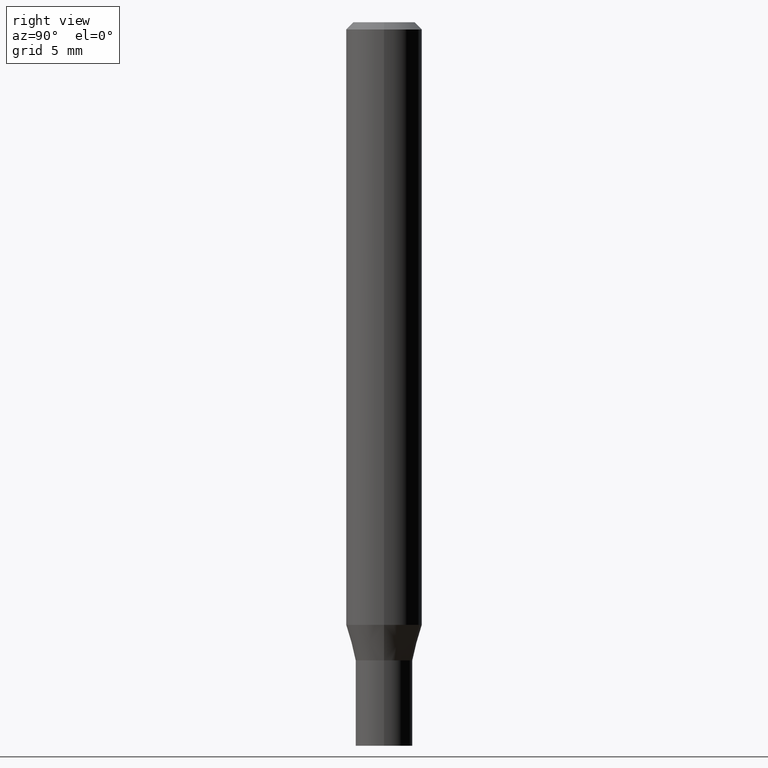
[diagram: clean part render]
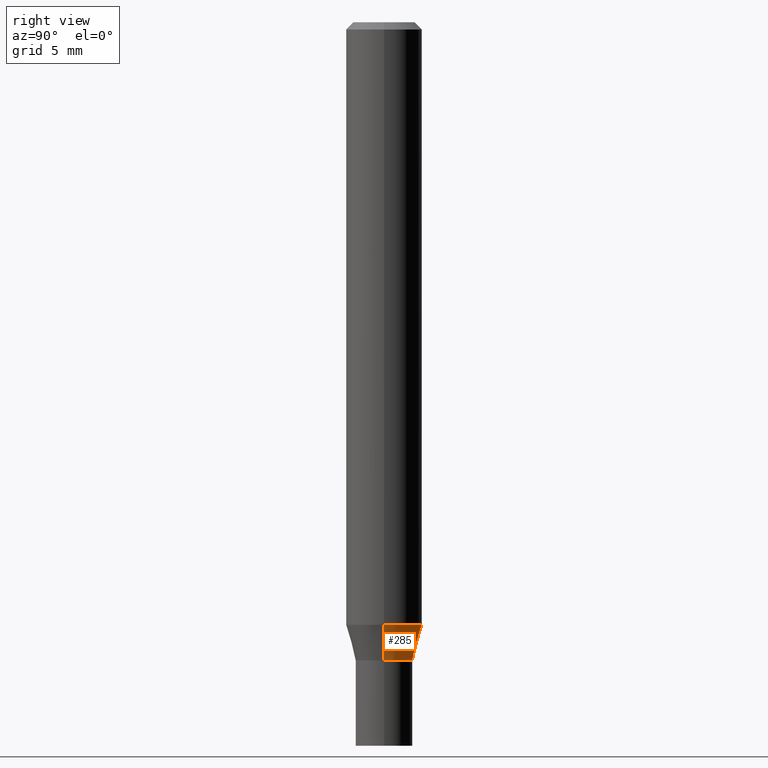
[diagram: same view with one face highlighted and labeled with its STEP entity id]
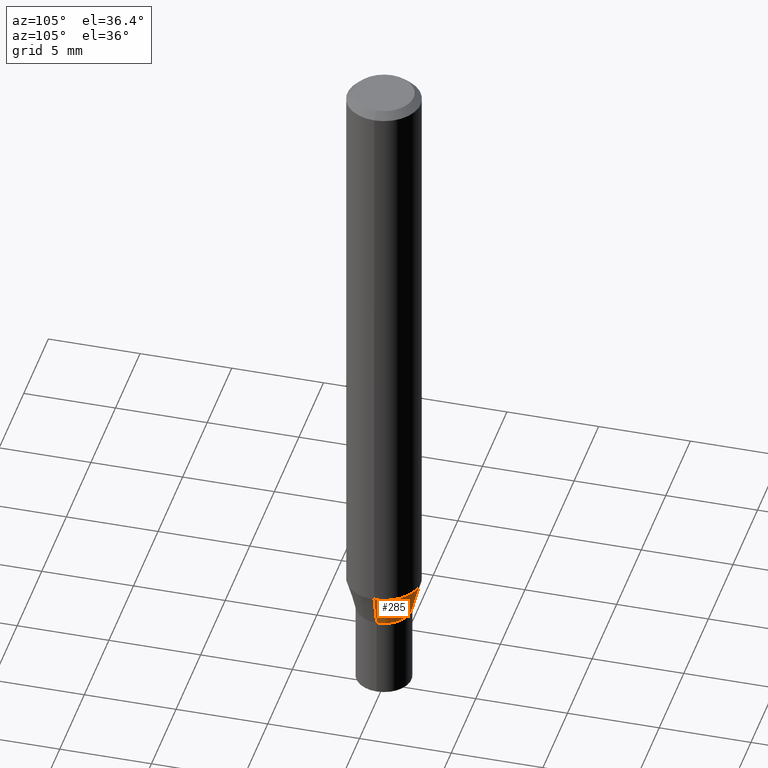
[diagram: same view with one face highlighted and labeled with its STEP entity id]
A machine part, right view. The second image highlights one B-rep face of the part: STEP entity #285.
A second angle (auxiliary view) of the same face is appended — the face is thin or edge-on in the first view.
In plain terms, the highlighted conical surface has half-angle 15 deg.
Its self-contained STEP definition (entity closure, byte-faithful):
#12 = EDGE_LOOP ( 'NONE', ( #332, #40, #91, #136 ) ) ;
#18 = VERTEX_POINT ( 'NONE', #406 ) ;
#25 = DIRECTION ( 'NONE',  ( -0.2588190451025217942, 5.211531920934552619E-15, 0.9659258262890679791 ) ) ;
#40 = ORIENTED_EDGE ( 'NONE', *, *, #341, .T. ) ;
#41 = CONICAL_SURFACE ( 'NONE', #303, 0.05904999999999991506, 0.2617993877991505181 ) ;
#55 = CARTESIAN_POINT ( 'NONE',  ( 0.05904999999999991506, -5.031573757406854801E-15, -1.323000000000000176 ) ) ;
#68 = CIRCLE ( 'NONE', #75, 0.07875000000000000056 ) ;
#69 = VERTEX_POINT ( 'NONE', #219 ) ;
#75 = AXIS2_PLACEMENT_3D ( 'NONE', #158, #236, #344 ) ;
#82 = FACE_OUTER_BOUND ( 'NONE', #12, .T. ) ;
#89 = DIRECTION ( 'NONE',  ( 1.000000000000000000, -6.982962677686266711E-15, 0.000000000000000000 ) ) ;
#91 = ORIENTED_EDGE ( 'NONE', *, *, #458, .F. ) ;
#99 = DIRECTION ( 'NONE',  ( -2.445468806185136597E-29, 3.491481338843145583E-15, 1.000000000000000000 ) ) ;
#110 = VECTOR ( 'NONE', #413, 39.37007874015748143 ) ;
#133 = CARTESIAN_POINT ( 'NONE',  ( 3.235355230582935570E-29, -4.619229811289481459E-15, -1.323000000000000176 ) ) ;
#136 = ORIENTED_EDGE ( 'NONE', *, *, #302, .F. ) ;
#158 = CARTESIAN_POINT ( 'NONE',  ( 3.055560938072683577E-29, -4.362531212009729741E-15, -1.249478599090893205 ) ) ;
#165 = DIRECTION ( 'NONE',  ( -2.445468806185136597E-29, 3.491481338843145583E-15, 1.000000000000000000 ) ) ;
#171 = CIRCLE ( 'NONE', #330, 0.05904999999999991506 ) ;
#192 = CARTESIAN_POINT ( 'NONE',  ( -0.05904999999999991506, -4.199654325823143543E-15, -1.323000000000000176 ) ) ;
#217 = CARTESIAN_POINT ( 'NONE',  ( 3.235355230582935570E-29, -4.619229811289481459E-15, -1.323000000000000176 ) ) ;
#219 = CARTESIAN_POINT ( 'NONE',  ( 0.07875000000000000056, -4.912439522877523087E-15, -1.249478599090893205 ) ) ;
#231 = LINE ( 'NONE', #192, #354 ) ;
#236 = DIRECTION ( 'NONE',  ( -2.445468806185136597E-29, 3.491481338843145583E-15, 1.000000000000000000 ) ) ;
#269 = CARTESIAN_POINT ( 'NONE',  ( -0.07875000000000000056, -3.802978807598650940E-15, -1.249478599090893205 ) ) ;
#285 = ADVANCED_FACE ( 'NONE', ( #82 ), #41, .T. ) ;
#302 = EDGE_CURVE ( 'NONE', #18, #69, #453, .T. ) ;
#303 = AXIS2_PLACEMENT_3D ( 'NONE', #217, #165, #89 ) ;
#324 = VERTEX_POINT ( 'NONE', #269 ) ;
#330 = AXIS2_PLACEMENT_3D ( 'NONE', #133, #99, #424 ) ;
#332 = ORIENTED_EDGE ( 'NONE', *, *, #462, .T. ) ;
#341 = EDGE_CURVE ( 'NONE', #395, #324, #231, .T. ) ;
#344 = DIRECTION ( 'NONE',  ( 1.000000000000000000, -6.982962677686261977E-15, 0.000000000000000000 ) ) ;
#354 = VECTOR ( 'NONE', #25, 39.37007874015748143 ) ;
#395 = VERTEX_POINT ( 'NONE', #457 ) ;
#406 = CARTESIAN_POINT ( 'NONE',  ( 0.05904999999999991506, -5.031573757406854801E-15, -1.323000000000000176 ) ) ;
#413 = DIRECTION ( 'NONE',  ( 0.2588190451025217942, 1.565188264969618812E-15, 0.9659258262890679791 ) ) ;
#424 = DIRECTION ( 'NONE',  ( 1.000000000000000000, -6.982962677686266711E-15, 0.000000000000000000 ) ) ;
#453 = LINE ( 'NONE', #55, #110 ) ;
#457 = CARTESIAN_POINT ( 'NONE',  ( -0.05904999999999991506, -4.001316566710896453E-15, -1.323000000000000176 ) ) ;
#458 = EDGE_CURVE ( 'NONE', #69, #324, #68, .T. ) ;
#462 = EDGE_CURVE ( 'NONE', #18, #395, #171, .T. ) ;